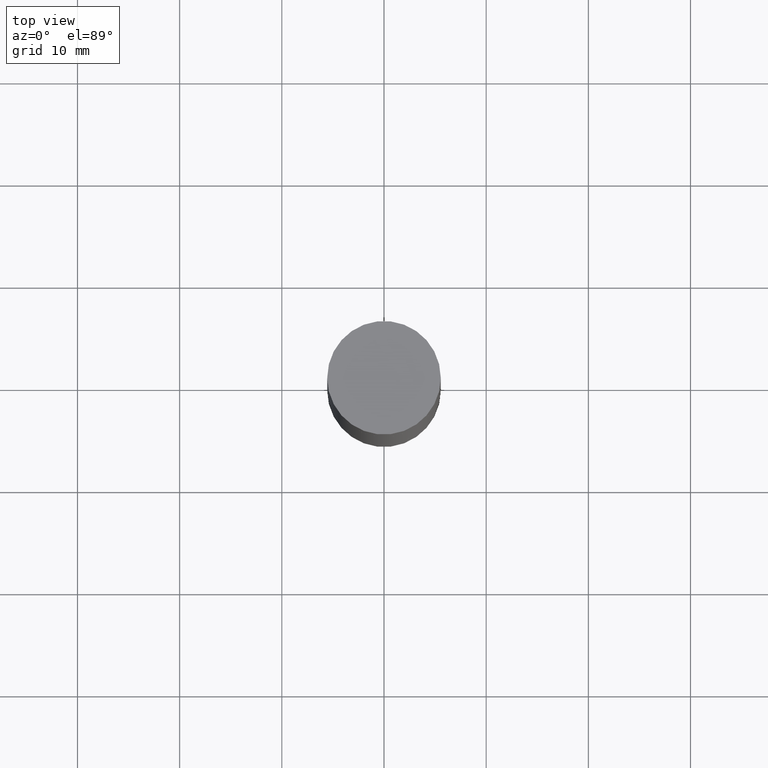
[diagram: clean part render]
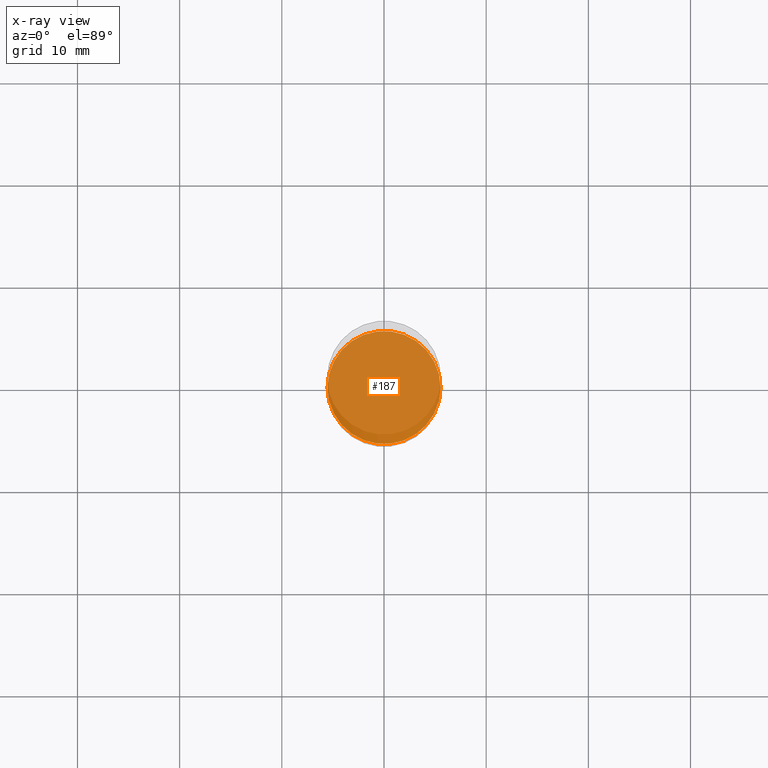
[diagram: x-ray — body ghosted, one internal face saturated and labeled with its STEP entity id]
A machine part, top view, then the same camera in x-ray: the body is ghosted and one INTERNAL B-rep face — a face not visible from any outside direction — is saturated and labeled: STEP entity #187.
In plain terms, the highlighted planar face has unit normal (-0, 0, 1).
Its self-contained STEP definition (entity closure, byte-faithful):
#11 = DIRECTION ( 'NONE',  ( 1.000000000000000000, -6.982962677686265922E-15, 4.876176775795935793E-29 ) ) ;
#25 = ORIENTED_EDGE ( 'NONE', *, *, #213, .F. ) ;
#51 = CIRCLE ( 'NONE', #108, 0.2177499999999999991 ) ;
#92 = VERTEX_POINT ( 'NONE', #101 ) ;
#101 = CARTESIAN_POINT ( 'NONE',  ( -0.2177499999999999991, -6.086855907922961200E-15, -2.187999999999999723 ) ) ;
#108 = AXIS2_PLACEMENT_3D ( 'NONE', #319, #381, #428 ) ;
#116 = FACE_OUTER_BOUND ( 'NONE', #498, .T. ) ;
#187 = ADVANCED_FACE ( 'NONE', ( #116 ), #529, .F. ) ;
#212 = DIRECTION ( 'NONE',  ( -2.438088387897960049E-29, 3.491481338843145188E-15, 1.000000000000000000 ) ) ;
#213 = EDGE_CURVE ( 'NONE', #92, #297, #51, .T. ) ;
#221 = CARTESIAN_POINT ( 'NONE',  ( 5.350685747933077986E-29, -7.639361169388800962E-15, -2.187999999999999723 ) ) ;
#285 = AXIS2_PLACEMENT_3D ( 'NONE', #221, #212, #11 ) ;
#297 = VERTEX_POINT ( 'NONE', #509 ) ;
#319 = CARTESIAN_POINT ( 'NONE',  ( 5.350685747933077986E-29, -7.639361169388800962E-15, -2.187999999999999723 ) ) ;
#327 = ORIENTED_EDGE ( 'NONE', *, *, #676, .F. ) ;
#381 = DIRECTION ( 'NONE',  ( -2.445468806185136597E-29, 3.491481338843145583E-15, 1.000000000000000000 ) ) ;
#422 = DIRECTION ( 'NONE',  ( -2.445468806185136597E-29, 3.491481338843145583E-15, 1.000000000000000000 ) ) ;
#428 = DIRECTION ( 'NONE',  ( 1.000000000000000000, -6.982962677686266711E-15, 0.000000000000000000 ) ) ;
#498 = EDGE_LOOP ( 'NONE', ( #327, #25 ) ) ;
#509 = CARTESIAN_POINT ( 'NONE',  ( 0.2177499999999999991, -9.159901292454986579E-15, -2.187999999999999723 ) ) ;
#529 = PLANE ( 'NONE',  #285 ) ;
#542 = CIRCLE ( 'NONE', #626, 0.2177499999999999991 ) ;
#620 = DIRECTION ( 'NONE',  ( 1.000000000000000000, -6.982962677686266711E-15, 0.000000000000000000 ) ) ;
#626 = AXIS2_PLACEMENT_3D ( 'NONE', #668, #422, #620 ) ;
#668 = CARTESIAN_POINT ( 'NONE',  ( 5.350685747933077986E-29, -7.639361169388800962E-15, -2.187999999999999723 ) ) ;
#676 = EDGE_CURVE ( 'NONE', #297, #92, #542, .T. ) ;